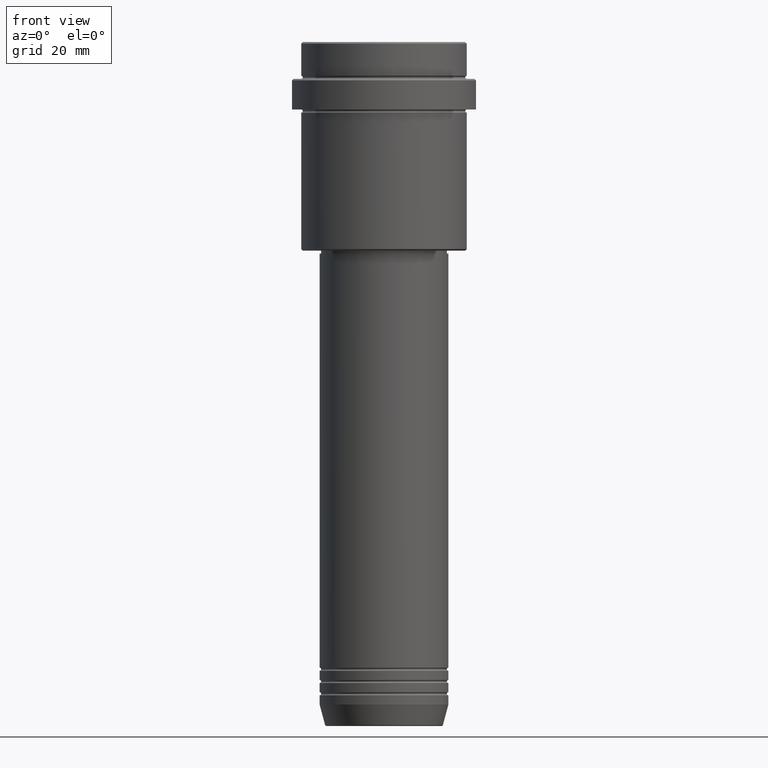
[diagram: clean part render]
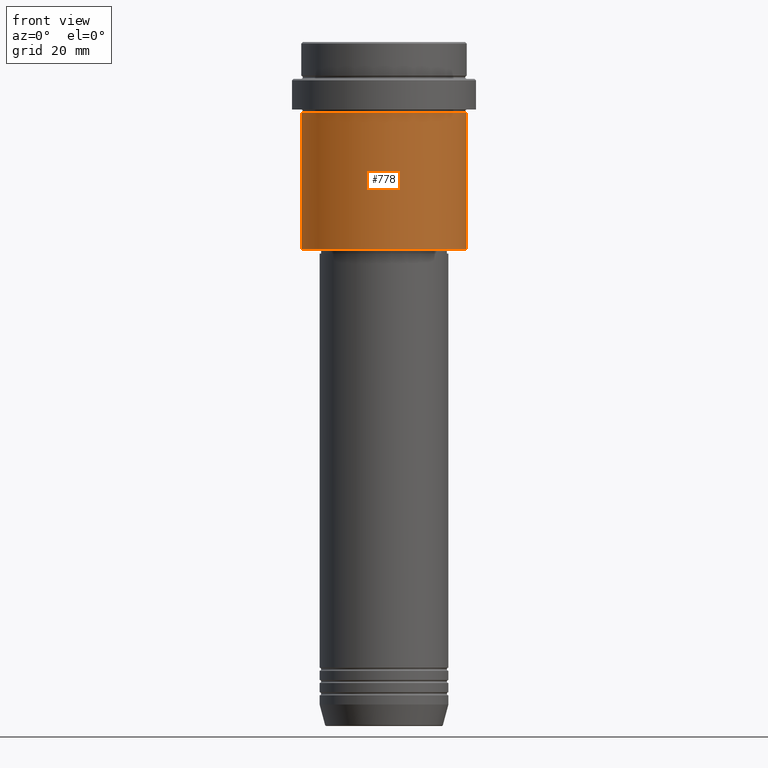
[diagram: same view with one face highlighted and labeled with its STEP entity id]
A machine part, front view. The second image highlights one B-rep face of the part: STEP entity #778.
In plain terms, the highlighted cylindrical surface (partial cylindrical patch) has radius 27 mm, axis along (-0, -0, 1).
Its self-contained STEP definition (entity closure, byte-faithful):
#5 = EDGE_CURVE ( 'NONE', #1116, #861, #1168, .T. ) ;
#47 = LINE ( 'NONE', #813, #948 ) ;
#69 = CARTESIAN_POINT ( 'NONE',  ( 26.99999999999999645, 0.000000000000000000, -23.00000000000000000 ) ) ;
#110 = DIRECTION ( 'NONE',  ( -0.000000000000000000, -0.000000000000000000, 1.000000000000000000 ) ) ;
#233 = AXIS2_PLACEMENT_3D ( 'NONE', #1066, #1160, #1072 ) ;
#420 = CIRCLE ( 'NONE', #606, 26.99999999999999645 ) ;
#461 = ORIENTED_EDGE ( 'NONE', *, *, #524, .T. ) ;
#470 = DIRECTION ( 'NONE',  ( -0.000000000000000000, -0.000000000000000000, 1.000000000000000000 ) ) ;
#476 = ORIENTED_EDGE ( 'NONE', *, *, #708, .F. ) ;
#481 = ORIENTED_EDGE ( 'NONE', *, *, #5, .F. ) ;
#484 = EDGE_LOOP ( 'NONE', ( #476, #902, #461, #481 ) ) ;
#507 = VERTEX_POINT ( 'NONE', #1409 ) ;
#524 = EDGE_CURVE ( 'NONE', #507, #861, #793, .T. ) ;
#605 = VERTEX_POINT ( 'NONE', #775 ) ;
#606 = AXIS2_PLACEMENT_3D ( 'NONE', #1378, #949, #1052 ) ;
#698 = AXIS2_PLACEMENT_3D ( 'NONE', #1412, #1009, #1345 ) ;
#708 = EDGE_CURVE ( 'NONE', #605, #1116, #47, .T. ) ;
#775 = CARTESIAN_POINT ( 'NONE',  ( -26.99999999999999645, 3.306546357697853339E-15, -67.49999999999998579 ) ) ;
#778 = ADVANCED_FACE ( 'NONE', ( #1032 ), #1386, .T. ) ;
#793 = LINE ( 'NONE', #1326, #1264 ) ;
#797 = EDGE_CURVE ( 'NONE', #605, #507, #420, .T. ) ;
#813 = CARTESIAN_POINT ( 'NONE',  ( -26.99999999999999645, 3.306546357697853339E-15, 0.000000000000000000 ) ) ;
#840 = CARTESIAN_POINT ( 'NONE',  ( -26.99999999999999645, 3.306546357697853339E-15, -23.00000000000000000 ) ) ;
#861 = VERTEX_POINT ( 'NONE', #69 ) ;
#902 = ORIENTED_EDGE ( 'NONE', *, *, #797, .T. ) ;
#948 = VECTOR ( 'NONE', #470, 1000.000000000000000 ) ;
#949 = DIRECTION ( 'NONE',  ( -0.000000000000000000, -0.000000000000000000, 1.000000000000000000 ) ) ;
#1009 = DIRECTION ( 'NONE',  ( -0.000000000000000000, -0.000000000000000000, 1.000000000000000000 ) ) ;
#1032 = FACE_OUTER_BOUND ( 'NONE', #484, .T. ) ;
#1052 = DIRECTION ( 'NONE',  ( -1.000000000000000000, 0.000000000000000000, 0.000000000000000000 ) ) ;
#1066 = CARTESIAN_POINT ( 'NONE',  ( 0.000000000000000000, 0.000000000000000000, 0.000000000000000000 ) ) ;
#1072 = DIRECTION ( 'NONE',  ( 1.000000000000000000, 0.000000000000000000, 0.000000000000000000 ) ) ;
#1116 = VERTEX_POINT ( 'NONE', #840 ) ;
#1160 = DIRECTION ( 'NONE',  ( -0.000000000000000000, -0.000000000000000000, 1.000000000000000000 ) ) ;
#1168 = CIRCLE ( 'NONE', #698, 26.99999999999999645 ) ;
#1264 = VECTOR ( 'NONE', #110, 1000.000000000000000 ) ;
#1326 = CARTESIAN_POINT ( 'NONE',  ( 26.99999999999999645, 0.000000000000000000, 0.000000000000000000 ) ) ;
#1345 = DIRECTION ( 'NONE',  ( 1.000000000000000000, 0.000000000000000000, 0.000000000000000000 ) ) ;
#1378 = CARTESIAN_POINT ( 'NONE',  ( 0.000000000000000000, 0.000000000000000000, -67.49999999999998579 ) ) ;
#1386 = CYLINDRICAL_SURFACE ( 'NONE', #233, 26.99999999999999645 ) ;
#1409 = CARTESIAN_POINT ( 'NONE',  ( 26.99999999999999645, 0.000000000000000000, -67.49999999999998579 ) ) ;
#1412 = CARTESIAN_POINT ( 'NONE',  ( 0.000000000000000000, 0.000000000000000000, -23.00000000000000000 ) ) ;